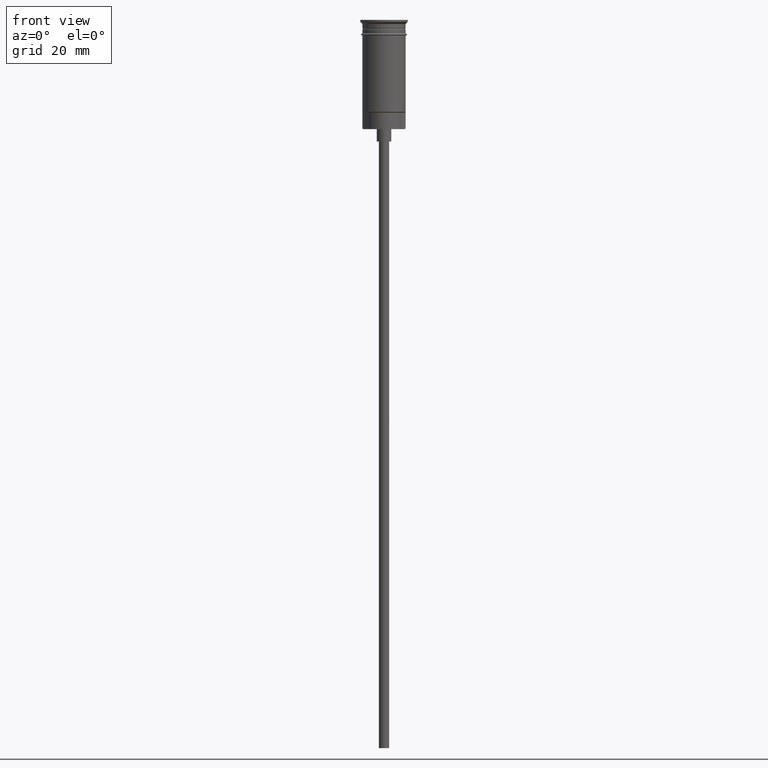
[diagram: clean part render]
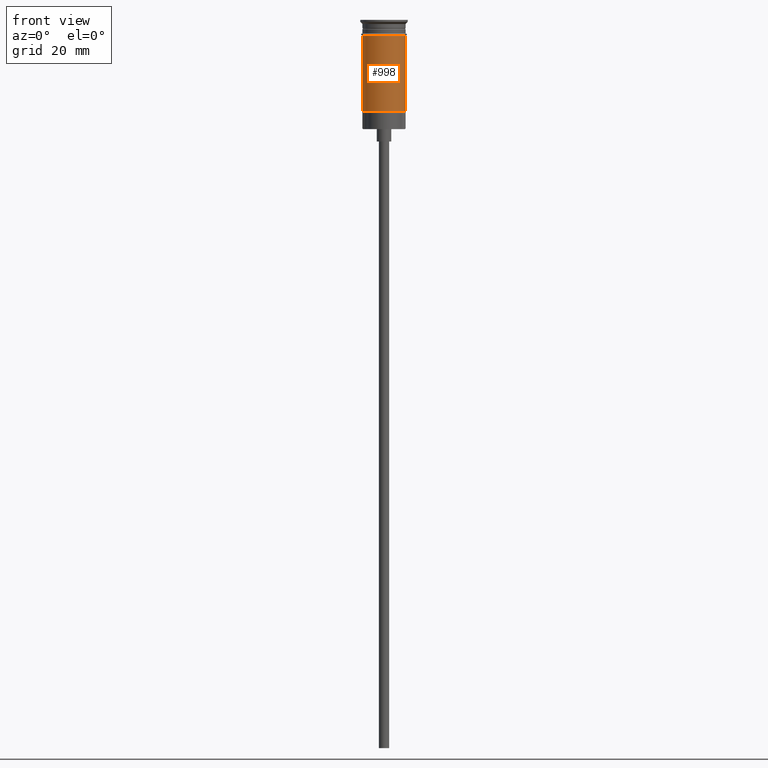
[diagram: same view with one face highlighted and labeled with its STEP entity id]
A machine part, front view. The second image highlights one B-rep face of the part: STEP entity #998.
In plain terms, the highlighted cylindrical surface (edge-blend (fillet) strip) has radius 5.25 mm, axis along (-0, -0, 1).
Its self-contained STEP definition (entity closure, byte-faithful):
#17 = ORIENTED_EDGE ( 'NONE', *, *, #1568, .T. ) ;
#89 = VERTEX_POINT ( 'NONE', #1080 ) ;
#127 = CARTESIAN_POINT ( 'NONE',  ( 5.249999999999996447, 6.429395695523600208E-16, -22.29999999999998295 ) ) ;
#159 = VECTOR ( 'NONE', #1351, 1000.000000000000000 ) ;
#205 = DIRECTION ( 'NONE',  ( 1.000000000000000000, 0.000000000000000000, 0.000000000000000000 ) ) ;
#210 = CIRCLE ( 'NONE', #1594, 5.249999999999999112 ) ;
#214 = AXIS2_PLACEMENT_3D ( 'NONE', #281, #1129, #1252 ) ;
#242 = DIRECTION ( 'NONE',  ( 1.000000000000000000, 0.000000000000000000, 0.000000000000000000 ) ) ;
#281 = CARTESIAN_POINT ( 'NONE',  ( 0.000000000000000000, 0.000000000000000000, -22.29999999999998295 ) ) ;
#338 = LINE ( 'NONE', #824, #1370 ) ;
#360 = DIRECTION ( 'NONE',  ( -0.000000000000000000, -0.000000000000000000, 1.000000000000000000 ) ) ;
#502 = EDGE_CURVE ( 'NONE', #1491, #624, #338, .T. ) ;
#537 = CARTESIAN_POINT ( 'NONE',  ( 5.249999999999999112, 0.000000000000000000, -3.799999999999998934 ) ) ;
#613 = ORIENTED_EDGE ( 'NONE', *, *, #887, .F. ) ;
#624 = VERTEX_POINT ( 'NONE', #537 ) ;
#668 = EDGE_CURVE ( 'NONE', #89, #890, #860, .T. ) ;
#699 = CARTESIAN_POINT ( 'NONE',  ( -5.249999999999999112, 6.429395695523603167E-16, -3.799999999999998934 ) ) ;
#736 = FACE_OUTER_BOUND ( 'NONE', #976, .T. ) ;
#745 = CARTESIAN_POINT ( 'NONE',  ( -5.249999999999996447, 6.429395695523600208E-16, 0.000000000000000000 ) ) ;
#756 = CARTESIAN_POINT ( 'NONE',  ( 0.000000000000000000, 0.000000000000000000, 0.000000000000000000 ) ) ;
#824 = CARTESIAN_POINT ( 'NONE',  ( 5.249999999999996447, 0.000000000000000000, 0.000000000000000000 ) ) ;
#860 = LINE ( 'NONE', #745, #159 ) ;
#887 = EDGE_CURVE ( 'NONE', #890, #624, #210, .T. ) ;
#890 = VERTEX_POINT ( 'NONE', #699 ) ;
#905 = CIRCLE ( 'NONE', #214, 5.249999999999996447 ) ;
#970 = DIRECTION ( 'NONE',  ( -0.000000000000000000, -0.000000000000000000, 1.000000000000000000 ) ) ;
#976 = EDGE_LOOP ( 'NONE', ( #1595, #17, #1511, #613 ) ) ;
#998 = ADVANCED_FACE ( 'NONE', ( #736 ), #1357, .T. ) ;
#1080 = CARTESIAN_POINT ( 'NONE',  ( -5.249999999999994671, 0.000000000000000000, -22.29999999999998295 ) ) ;
#1129 = DIRECTION ( 'NONE',  ( -0.000000000000000000, -0.000000000000000000, 1.000000000000000000 ) ) ;
#1189 = CARTESIAN_POINT ( 'NONE',  ( 0.000000000000000000, 0.000000000000000000, -3.799999999999998934 ) ) ;
#1252 = DIRECTION ( 'NONE',  ( -1.000000000000000000, 0.000000000000000000, 0.000000000000000000 ) ) ;
#1254 = DIRECTION ( 'NONE',  ( -0.000000000000000000, -0.000000000000000000, 1.000000000000000000 ) ) ;
#1351 = DIRECTION ( 'NONE',  ( -0.000000000000000000, -0.000000000000000000, 1.000000000000000000 ) ) ;
#1357 = CYLINDRICAL_SURFACE ( 'NONE', #1411, 5.249999999999996447 ) ;
#1370 = VECTOR ( 'NONE', #970, 1000.000000000000000 ) ;
#1411 = AXIS2_PLACEMENT_3D ( 'NONE', #756, #1254, #242 ) ;
#1491 = VERTEX_POINT ( 'NONE', #127 ) ;
#1511 = ORIENTED_EDGE ( 'NONE', *, *, #502, .T. ) ;
#1568 = EDGE_CURVE ( 'NONE', #89, #1491, #905, .T. ) ;
#1594 = AXIS2_PLACEMENT_3D ( 'NONE', #1189, #360, #205 ) ;
#1595 = ORIENTED_EDGE ( 'NONE', *, *, #668, .F. ) ;